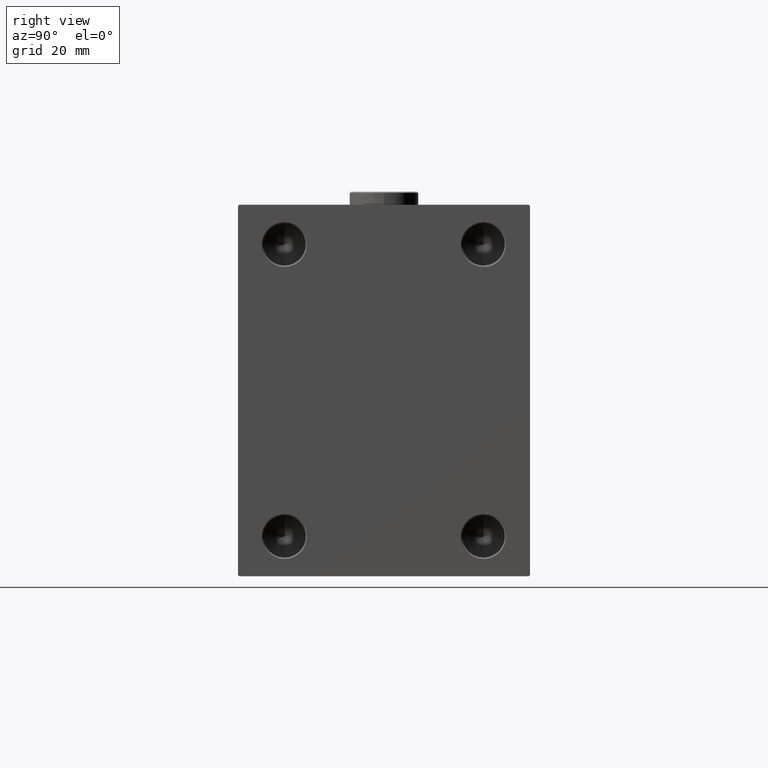
[diagram: clean part render]
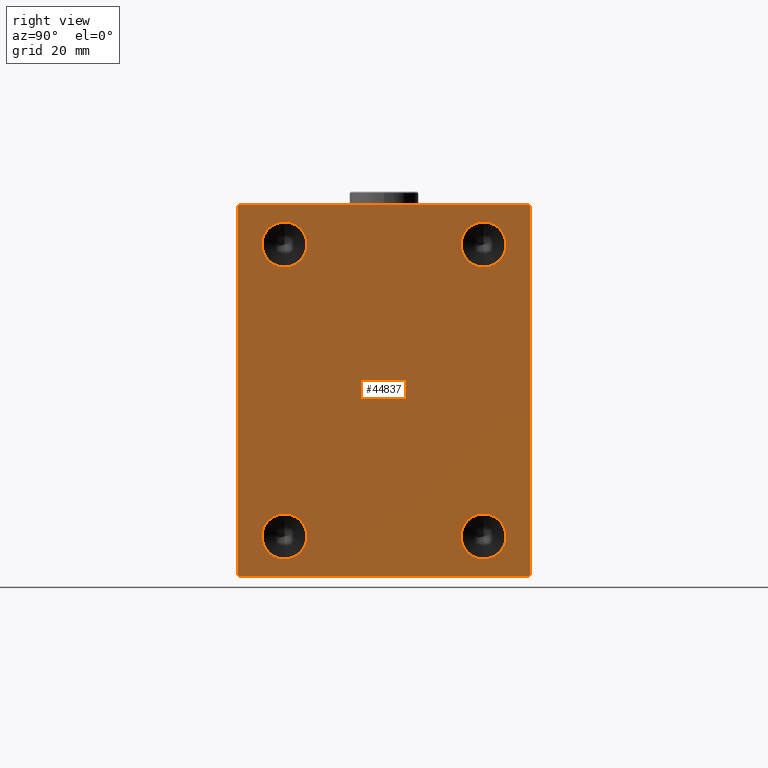
[diagram: same view with one face highlighted and labeled with its STEP entity id]
A machine part, right view. The second image highlights one B-rep face of the part: STEP entity #44837.
In plain terms, the highlighted planar face has unit normal (1, 0, 0).
Its self-contained STEP definition (entity closure, byte-faithful):
#1782 = LINE ( 'NONE', #33689, #37949 ) ;
#1871 = ORIENTED_EDGE ( 'NONE', *, *, #2683, .F. ) ;
#2254 = CARTESIAN_POINT ( 'NONE',  ( 193.0000000000000000, -37.49999999999999289, 63.50000000000000000 ) ) ;
#2376 = DIRECTION ( 'NONE',  ( 1.000000000000000000, 0.000000000000000000, 0.000000000000000000 ) ) ;
#2451 = CARTESIAN_POINT ( 'NONE',  ( 193.0000000000000000, -37.49999999999999289, 55.00000000000000711 ) ) ;
#2502 = LINE ( 'NONE', #15697, #14797 ) ;
#2530 = CARTESIAN_POINT ( 'NONE',  ( 193.0000000000000000, 37.50000000000000000, -54.99999999999999289 ) ) ;
#2568 = EDGE_LOOP ( 'NONE', ( #1871, #3538 ) ) ;
#2683 = EDGE_CURVE ( 'NONE', #11954, #15094, #33798, .T. ) ;
#3173 = ORIENTED_EDGE ( 'NONE', *, *, #5410, .T. ) ;
#3300 = CARTESIAN_POINT ( 'NONE',  ( 193.0000000000000000, -37.49999999999999289, -63.49999999999998579 ) ) ;
#3427 = CARTESIAN_POINT ( 'NONE',  ( 193.0000000000000000, -62.24999999999847233, -62.25000000000193268 ) ) ;
#3500 = ORIENTED_EDGE ( 'NONE', *, *, #30822, .F. ) ;
#3532 = VECTOR ( 'NONE', #21632, 1000.000000000000000 ) ;
#3538 = ORIENTED_EDGE ( 'NONE', *, *, #20055, .F. ) ;
#3613 = CARTESIAN_POINT ( 'NONE',  ( 193.0000000000000000, -62.25000000000112266, 62.24999999999853628 ) ) ;
#3782 = EDGE_CURVE ( 'NONE', #16761, #14547, #24651, .T. ) ;
#4181 = CARTESIAN_POINT ( 'NONE',  ( 193.0000000000000000, 54.49999999999996447, 70.00000000000001421 ) ) ;
#4203 = VERTEX_POINT ( 'NONE', #4181 ) ;
#4518 = VECTOR ( 'NONE', #35565, 1000.000000000000000 ) ;
#4699 = VERTEX_POINT ( 'NONE', #2254 ) ;
#4788 = CARTESIAN_POINT ( 'NONE',  ( 193.0000000000000000, -55.00000000000000000, 69.49999999999997158 ) ) ;
#5168 = FACE_BOUND ( 'NONE', #26982, .T. ) ;
#5410 = EDGE_CURVE ( 'NONE', #4203, #16761, #6660, .T. ) ;
#5792 = AXIS2_PLACEMENT_3D ( 'NONE', #20604, #2376, #20153 ) ;
#5799 = ORIENTED_EDGE ( 'NONE', *, *, #16353, .T. ) ;
#6428 = DIRECTION ( 'NONE',  ( 0.000000000000000000, -1.000000000000000000, -1.261617073437677999E-16 ) ) ;
#6477 = CARTESIAN_POINT ( 'NONE',  ( 193.0000000000000000, 55.00000000000000711, -69.49999999999997158 ) ) ;
#6660 = LINE ( 'NONE', #27480, #21305 ) ;
#6986 = ORIENTED_EDGE ( 'NONE', *, *, #28911, .T. ) ;
#7177 = EDGE_CURVE ( 'NONE', #31411, #37181, #16233, .T. ) ;
#7378 = DIRECTION ( 'NONE',  ( 1.000000000000000000, -0.000000000000000000, -0.000000000000000000 ) ) ;
#7537 = EDGE_CURVE ( 'NONE', #29514, #31411, #33765, .T. ) ;
#8030 = CIRCLE ( 'NONE', #27214, 8.500000000000007105 ) ;
#8044 = VECTOR ( 'NONE', #33820, 1000.000000000000000 ) ;
#8171 = FACE_BOUND ( 'NONE', #18543, .T. ) ;
#8403 = ORIENTED_EDGE ( 'NONE', *, *, #10171, .T. ) ;
#8792 = DIRECTION ( 'NONE',  ( 1.000000000000000000, -0.000000000000000000, -0.000000000000000000 ) ) ;
#9275 = VERTEX_POINT ( 'NONE', #32718 ) ;
#10118 = DIRECTION ( 'NONE',  ( 0.000000000000000000, 0.000000000000000000, -1.000000000000000000 ) ) ;
#10171 = EDGE_CURVE ( 'NONE', #14547, #12466, #43965, .T. ) ;
#10383 = CARTESIAN_POINT ( 'NONE',  ( 193.0000000000000000, 37.50000000000000000, 55.00000000000000711 ) ) ;
#11238 = DIRECTION ( 'NONE',  ( 1.000000000000000000, -0.000000000000000000, -0.000000000000000000 ) ) ;
#11632 = FACE_OUTER_BOUND ( 'NONE', #16662, .T. ) ;
#11954 = VERTEX_POINT ( 'NONE', #45575 ) ;
#12466 = VERTEX_POINT ( 'NONE', #23251 ) ;
#12786 = DIRECTION ( 'NONE',  ( 0.000000000000000000, 0.000000000000000000, -1.000000000000000000 ) ) ;
#13304 = VECTOR ( 'NONE', #40040, 1000.000000000000000 ) ;
#13983 = ORIENTED_EDGE ( 'NONE', *, *, #19721, .F. ) ;
#14049 = EDGE_CURVE ( 'NONE', #19841, #26209, #28089, .T. ) ;
#14403 = CARTESIAN_POINT ( 'NONE',  ( 193.0000000000000000, 54.50000000000001421, -69.99999999999998579 ) ) ;
#14547 = VERTEX_POINT ( 'NONE', #4788 ) ;
#14797 = VECTOR ( 'NONE', #26805, 1000.000000000000000 ) ;
#14907 = DIRECTION ( 'NONE',  ( 1.000000000000000000, -0.000000000000000000, -0.000000000000000000 ) ) ;
#15094 = VERTEX_POINT ( 'NONE', #3300 ) ;
#15506 = EDGE_CURVE ( 'NONE', #37181, #4203, #2502, .T. ) ;
#15697 = CARTESIAN_POINT ( 'NONE',  ( 193.0000000000000000, 62.24999999999847233, 62.25000000000193268 ) ) ;
#15720 = DIRECTION ( 'NONE',  ( 0.000000000000000000, 0.000000000000000000, -1.000000000000000000 ) ) ;
#15888 = CIRCLE ( 'NONE', #41715, 8.500000000000007105 ) ;
#16233 = LINE ( 'NONE', #19699, #8044 ) ;
#16353 = EDGE_CURVE ( 'NONE', #12466, #9275, #35332, .T. ) ;
#16662 = EDGE_LOOP ( 'NONE', ( #3173, #39240, #8403, #5799, #6986, #36886, #45300, #29858 ) ) ;
#16747 = CARTESIAN_POINT ( 'NONE',  ( 193.0000000000000000, 37.50000000000000000, -46.50000000000000000 ) ) ;
#16761 = VERTEX_POINT ( 'NONE', #37015 ) ;
#17156 = AXIS2_PLACEMENT_3D ( 'NONE', #28831, #11238, #42675 ) ;
#18543 = EDGE_LOOP ( 'NONE', ( #27053, #29767 ) ) ;
#19255 = FACE_BOUND ( 'NONE', #2568, .T. ) ;
#19699 = CARTESIAN_POINT ( 'NONE',  ( 193.0000000000000000, 55.00000000000000711, -69.99999999999998579 ) ) ;
#19721 = EDGE_CURVE ( 'NONE', #28733, #4699, #37109, .T. ) ;
#19841 = VERTEX_POINT ( 'NONE', #44317 ) ;
#20055 = EDGE_CURVE ( 'NONE', #15094, #11954, #43737, .T. ) ;
#20153 = DIRECTION ( 'NONE',  ( 0.000000000000000000, 0.000000000000000000, -1.000000000000000000 ) ) ;
#20604 = CARTESIAN_POINT ( 'NONE',  ( 193.0000000000000000, 0.000000000000000000, 0.000000000000000000 ) ) ;
#21138 = VERTEX_POINT ( 'NONE', #16747 ) ;
#21305 = VECTOR ( 'NONE', #6428, 1000.000000000000000 ) ;
#21632 = DIRECTION ( 'NONE',  ( 0.000000000000000000, -0.7071067811865328068, -0.7071067811865622277 ) ) ;
#22071 = CARTESIAN_POINT ( 'NONE',  ( 193.0000000000000000, -37.49999999999999289, -54.99999999999999289 ) ) ;
#22098 = VECTOR ( 'NONE', #30072, 1000.000000000000000 ) ;
#23251 = CARTESIAN_POINT ( 'NONE',  ( 193.0000000000000000, -55.00000000000000000, -69.50000000000000000 ) ) ;
#23421 = DIRECTION ( 'NONE',  ( 1.000000000000000000, -0.000000000000000000, -0.000000000000000000 ) ) ;
#23668 = VERTEX_POINT ( 'NONE', #37287 ) ;
#24201 = CIRCLE ( 'NONE', #27916, 8.500000000000007105 ) ;
#24651 = LINE ( 'NONE', #3613, #3532 ) ;
#25508 = ORIENTED_EDGE ( 'NONE', *, *, #44328, .F. ) ;
#25887 = AXIS2_PLACEMENT_3D ( 'NONE', #34281, #23421, #12786 ) ;
#26044 = AXIS2_PLACEMENT_3D ( 'NONE', #36037, #28879, #36493 ) ;
#26209 = VERTEX_POINT ( 'NONE', #43525 ) ;
#26805 = DIRECTION ( 'NONE',  ( -0.000000000000000000, -0.7071067811865672237, 0.7071067811865279218 ) ) ;
#26870 = ORIENTED_EDGE ( 'NONE', *, *, #27227, .F. ) ;
#26982 = EDGE_LOOP ( 'NONE', ( #3500, #13983 ) ) ;
#27053 = ORIENTED_EDGE ( 'NONE', *, *, #14049, .F. ) ;
#27214 = AXIS2_PLACEMENT_3D ( 'NONE', #2530, #8792, #15720 ) ;
#27227 = EDGE_CURVE ( 'NONE', #21138, #23668, #33517, .T. ) ;
#27480 = CARTESIAN_POINT ( 'NONE',  ( 193.0000000000000000, 54.99999999999999289, 70.00000000000001421 ) ) ;
#27916 = AXIS2_PLACEMENT_3D ( 'NONE', #10383, #7378, #42962 ) ;
#28089 = CIRCLE ( 'NONE', #25887, 8.500000000000007105 ) ;
#28535 = EDGE_LOOP ( 'NONE', ( #26870, #25508 ) ) ;
#28733 = VERTEX_POINT ( 'NONE', #31413 ) ;
#28831 = CARTESIAN_POINT ( 'NONE',  ( 193.0000000000000000, -37.49999999999999289, -54.99999999999999289 ) ) ;
#28879 = DIRECTION ( 'NONE',  ( 1.000000000000000000, -0.000000000000000000, -0.000000000000000000 ) ) ;
#28911 = EDGE_CURVE ( 'NONE', #9275, #29514, #1782, .T. ) ;
#29216 = FACE_BOUND ( 'NONE', #28535, .T. ) ;
#29383 = AXIS2_PLACEMENT_3D ( 'NONE', #22071, #14907, #10118 ) ;
#29514 = VERTEX_POINT ( 'NONE', #14403 ) ;
#29767 = ORIENTED_EDGE ( 'NONE', *, *, #42841, .F. ) ;
#29858 = ORIENTED_EDGE ( 'NONE', *, *, #15506, .T. ) ;
#30072 = DIRECTION ( 'NONE',  ( -0.000000000000000000, 0.7071067811865230368, 0.7071067811865721087 ) ) ;
#30519 = CARTESIAN_POINT ( 'NONE',  ( 193.0000000000000000, 62.25000000000189715, -62.24999999999756994 ) ) ;
#30822 = EDGE_CURVE ( 'NONE', #4699, #28733, #15888, .T. ) ;
#31411 = VERTEX_POINT ( 'NONE', #6477 ) ;
#31413 = CARTESIAN_POINT ( 'NONE',  ( 193.0000000000000000, -37.49999999999999289, 46.50000000000001421 ) ) ;
#32718 = CARTESIAN_POINT ( 'NONE',  ( 193.0000000000000000, -54.49999999999997158, -70.00000000000000000 ) ) ;
#33517 = CIRCLE ( 'NONE', #33618, 8.500000000000007105 ) ;
#33618 = AXIS2_PLACEMENT_3D ( 'NONE', #36409, #36636, #36859 ) ;
#33689 = CARTESIAN_POINT ( 'NONE',  ( 193.0000000000000000, -55.00000000000000000, -70.00000000000000000 ) ) ;
#33765 = LINE ( 'NONE', #30519, #22098 ) ;
#33798 = CIRCLE ( 'NONE', #29383, 8.500000000000007105 ) ;
#33820 = DIRECTION ( 'NONE',  ( 0.000000000000000000, -9.912705577010325549E-17, 1.000000000000000000 ) ) ;
#33905 = DIRECTION ( 'NONE',  ( 1.000000000000000000, -0.000000000000000000, -0.000000000000000000 ) ) ;
#34281 = CARTESIAN_POINT ( 'NONE',  ( 193.0000000000000000, 37.50000000000000000, 55.00000000000000711 ) ) ;
#35332 = LINE ( 'NONE', #3427, #4518 ) ;
#35565 = DIRECTION ( 'NONE',  ( -0.000000000000000000, 0.7071067811865672237, -0.7071067811865279218 ) ) ;
#36037 = CARTESIAN_POINT ( 'NONE',  ( 193.0000000000000000, -37.49999999999999289, 55.00000000000000711 ) ) ;
#36409 = CARTESIAN_POINT ( 'NONE',  ( 193.0000000000000000, 37.50000000000000000, -54.99999999999999289 ) ) ;
#36493 = DIRECTION ( 'NONE',  ( 0.000000000000000000, 0.000000000000000000, -1.000000000000000000 ) ) ;
#36636 = DIRECTION ( 'NONE',  ( 1.000000000000000000, -0.000000000000000000, -0.000000000000000000 ) ) ;
#36859 = DIRECTION ( 'NONE',  ( 0.000000000000000000, 0.000000000000000000, -1.000000000000000000 ) ) ;
#36886 = ORIENTED_EDGE ( 'NONE', *, *, #7537, .T. ) ;
#37015 = CARTESIAN_POINT ( 'NONE',  ( 193.0000000000000000, -54.49999999999999289, 70.00000000000000000 ) ) ;
#37109 = CIRCLE ( 'NONE', #26044, 8.500000000000007105 ) ;
#37181 = VERTEX_POINT ( 'NONE', #38297 ) ;
#37287 = CARTESIAN_POINT ( 'NONE',  ( 193.0000000000000000, 37.50000000000000000, -63.49999999999998579 ) ) ;
#37584 = DIRECTION ( 'NONE',  ( 0.000000000000000000, 0.000000000000000000, -1.000000000000000000 ) ) ;
#37949 = VECTOR ( 'NONE', #44078, 1000.000000000000000 ) ;
#38297 = CARTESIAN_POINT ( 'NONE',  ( 193.0000000000000000, 54.99999999999999289, 69.50000000000001421 ) ) ;
#39240 = ORIENTED_EDGE ( 'NONE', *, *, #3782, .T. ) ;
#39828 = PLANE ( 'NONE',  #5792 ) ;
#40040 = DIRECTION ( 'NONE',  ( 0.000000000000000000, 0.000000000000000000, -1.000000000000000000 ) ) ;
#40722 = CARTESIAN_POINT ( 'NONE',  ( 193.0000000000000000, -55.00000000000000000, 70.00000000000000000 ) ) ;
#41715 = AXIS2_PLACEMENT_3D ( 'NONE', #2451, #33905, #37584 ) ;
#42675 = DIRECTION ( 'NONE',  ( 0.000000000000000000, 0.000000000000000000, -1.000000000000000000 ) ) ;
#42841 = EDGE_CURVE ( 'NONE', #26209, #19841, #24201, .T. ) ;
#42962 = DIRECTION ( 'NONE',  ( 0.000000000000000000, 0.000000000000000000, -1.000000000000000000 ) ) ;
#43525 = CARTESIAN_POINT ( 'NONE',  ( 193.0000000000000000, 37.50000000000000000, 46.50000000000001421 ) ) ;
#43737 = CIRCLE ( 'NONE', #17156, 8.500000000000007105 ) ;
#43965 = LINE ( 'NONE', #40722, #13304 ) ;
#44078 = DIRECTION ( 'NONE',  ( 0.000000000000000000, 1.000000000000000000, 1.261617073437677752E-16 ) ) ;
#44317 = CARTESIAN_POINT ( 'NONE',  ( 193.0000000000000000, 37.50000000000000000, 63.50000000000000000 ) ) ;
#44328 = EDGE_CURVE ( 'NONE', #23668, #21138, #8030, .T. ) ;
#44837 = ADVANCED_FACE ( 'NONE', ( #8171, #5168, #19255, #29216, #11632 ), #39828, .T. ) ;
#45300 = ORIENTED_EDGE ( 'NONE', *, *, #7177, .T. ) ;
#45575 = CARTESIAN_POINT ( 'NONE',  ( 193.0000000000000000, -37.49999999999999289, -46.50000000000000000 ) ) ;